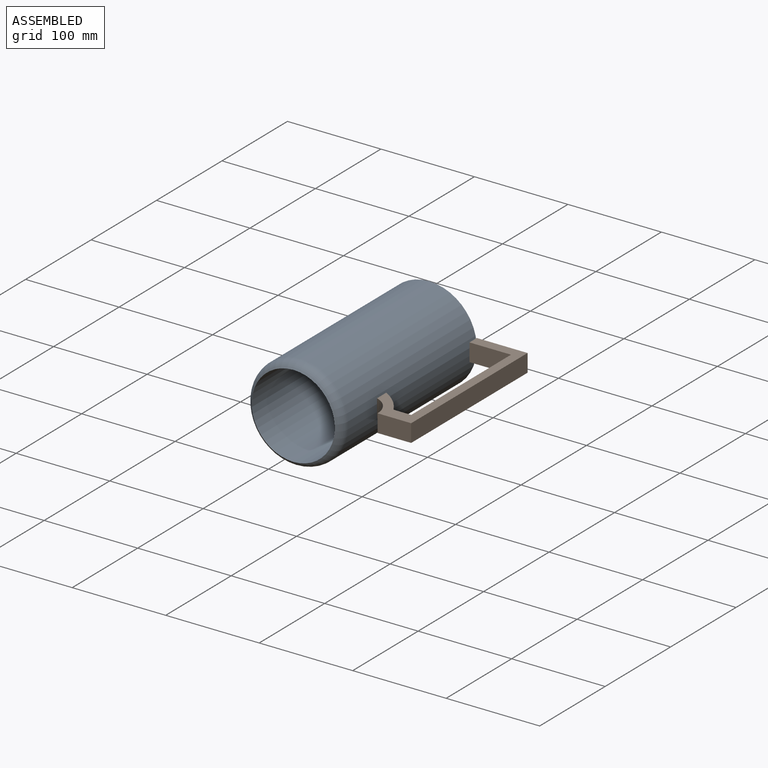
[diagram: assembled view]
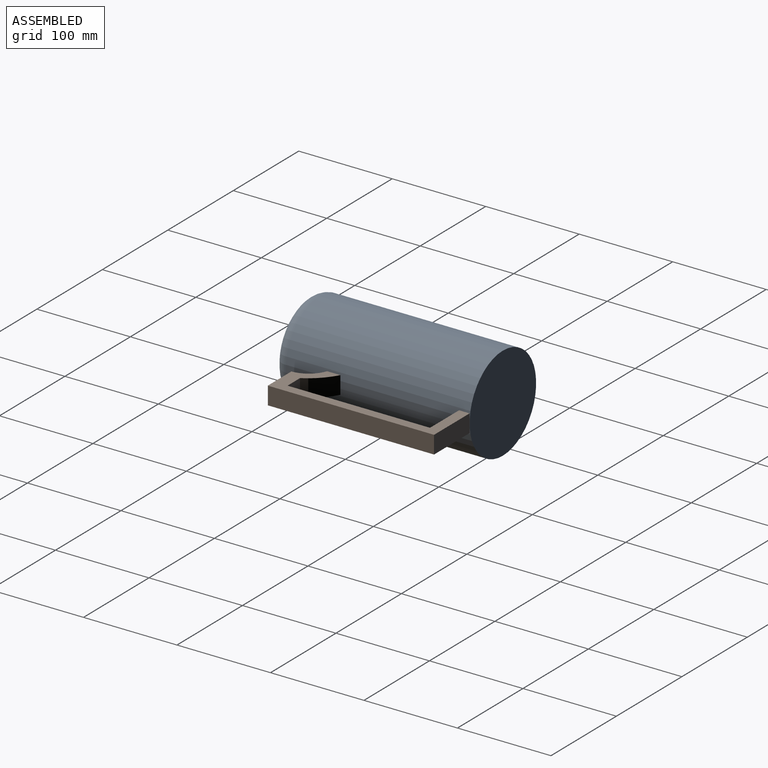
[diagram: assembled view, second angle]
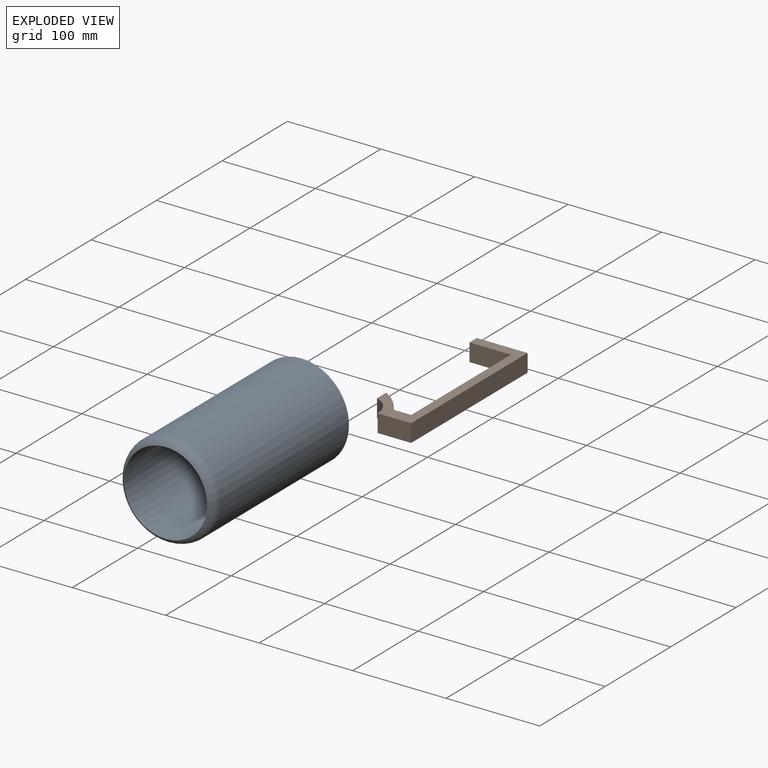
[diagram: exploded view]
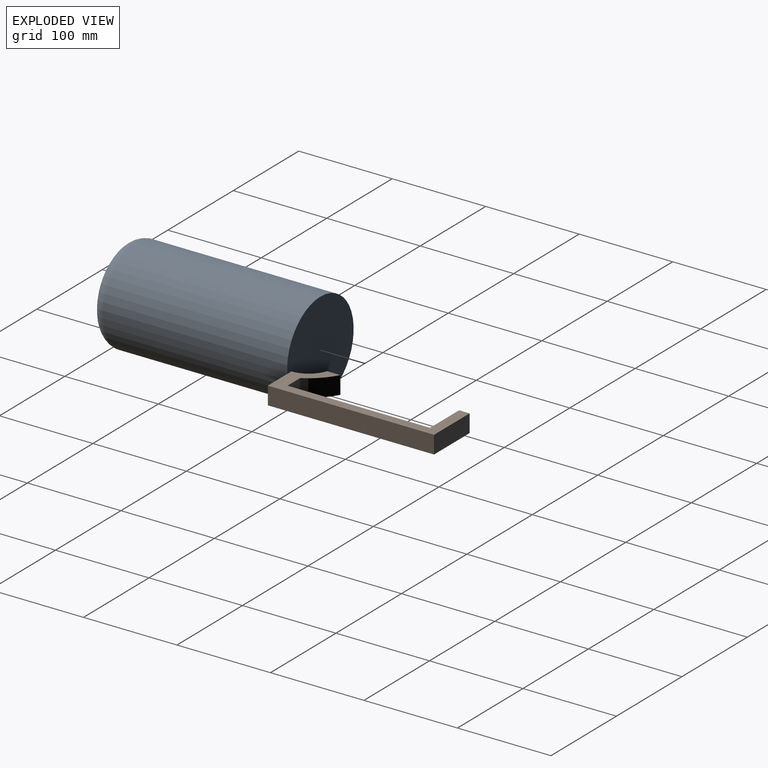
[diagram: exploded view, second angle]
ASSEMBLY  parts=2 mates=2
PART A: 5 faces, bbox 110x209.5x110 mm
  f0: cylinder r=50.8mm len=196.8mm, axis (0,1,0), area 62816.2mm2, adj f1,f4
  f1: plane 101.6x101.6mm, normal (0,1,0), area 8107.3mm2, adj f0
  f2: cylinder r=44.45mm len=190.5mm, axis (0,-1,0), area 53204.3mm2, adj f3,f4
  f3: plane 88.9x88.9mm, normal (0,-1,0), area 6207.2mm2, adj f2
  f4: torus R=38.1mm, axis (0,-1,0), area 4061.4mm2, adj f0,f2
PART B: 12 faces, bbox 54.3x177.8x19.1 mm
  f0: plane 19.05x11.23mm, normal (-1,0,0), area 213.9mm2, adj f1,f9,f10,f11
  f1: plane 44.45x19.05mm, normal (0,-1,0), area 846.8mm2, adj f0,f2,f10,f11
  f2: plane 152.4x19.05mm, normal (-1,0,0), area 2903.2mm2, adj f1,f3,f10,f11
  f3: plane 19.05x19.05mm, normal (0,1,0), area 362.9mm2, adj f2,f4,f10,f11
  f4: cylinder r=65.84mm len=25.4mm, axis (0,0,-1), area 693.1mm2, adj f3,f5,f10,f11
  f5: plane 19.05x14.17mm, normal (-1,0,0), area 270mm2, adj f4,f6,f10,f11
  f6: cylinder r=27.37mm len=25.4mm, axis (0,0,-1), area 636mm2, adj f5,f7,f10,f11
  f7: plane 35.93x19.05mm, normal (0,-1,0), area 684.5mm2, adj f6,f8,f10,f11
  f8: plane 177.8x19.05mm, normal (1,0,0), area 3387.1mm2, adj f7,f9,f10,f11
  f9: plane 54.31x19.05mm, normal (0,1,0), area 1034.6mm2, adj f0,f8,f10,f11
  f10: plane 177.8x54.31mm, normal (0,0,1), area 2926.1mm2, adj f0,f1,f2,f3,f4,f5,f6,f7
  f11: plane 177.8x54.31mm, normal (0,0,-1), area 2926.1mm2, adj f0,f1,f2,f3,f4,f5,f6,f7
PLACE A t=(-77.91,13.97,0)mm
PLACE B t=(-101.33,33.45,-9.52)mm
MATE parallel A.f0 <-> B.f9  axis (0,1,0) through (-77.91,13.97,0)mm
MATE parallel B.f9 <-> A.f0  axis (0,1,0) through (0.05,13.97,0)mm
